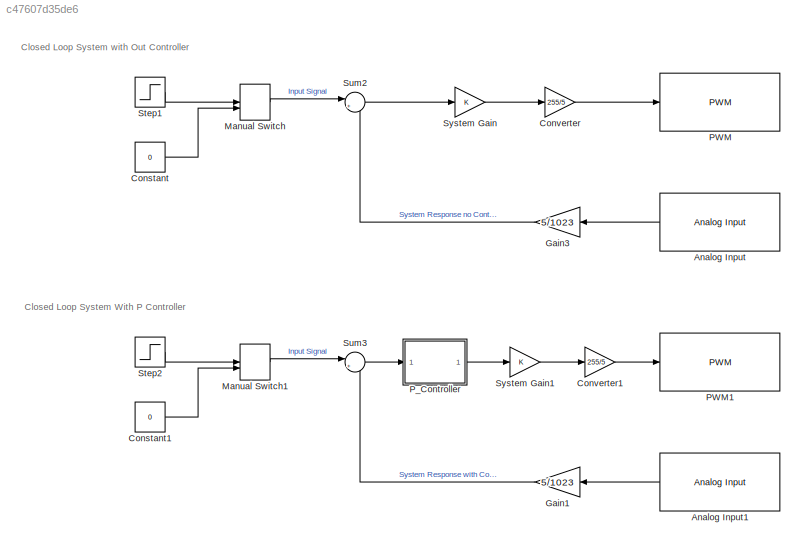
MODEL slx_c47607d35de6
KIND model
CONFIG AbsTol = auto
CONFIG EnableMultiTasking = on
CONFIG FixedStep = 0.001
CONFIG MaxStep = auto
CONFIG MinStep = auto
CONFIG RelTol = 1e-3
CONFIG SampleTimeConstraint = Unconstrained
CONFIG SolverName = FixedStepDiscrete
CONFIG StartTime = 0.0
CONFIG StopTime = 10
BLOCK [Reference] Analog Input  REF=arduinolib/Analog Input
  Commented = on
  NameLocation = top
  SourceBlock = arduinolib/Analog Input
  SourceType = Arduino Analog Input
BLOCK [Reference] Analog Input1  REF=arduinolib/Analog Input
  NameLocation = top
  SourceBlock = arduinolib/Analog Input
  SourceType = Arduino Analog Input
BLOCK [Constant] Constant
  Commented = on
  Value = 0
BLOCK [Constant] Constant1
  Value = 0
BLOCK [Gain] Converter
  Commented = on
  Gain = 255/5
BLOCK [Gain] Converter1
  Gain = 255/5
BLOCK [Gain] Gain1
  Gain = 5/1023
  NameLocation = top
BLOCK [Gain] Gain3
  Commented = on
  Gain = 5/1023
  NameLocation = top
BLOCK [ManualSwitch] Manual Switch
  Commented = on
BLOCK [ManualSwitch] Manual Switch1
BLOCK [Reference] PWM  REF=arduinolib/PWM
  Commented = on
  SourceBlock = arduinolib/PWM
  SourceType = Arduino PWM
BLOCK [Reference] PWM1  REF=arduinolib/PWM
  SourceBlock = arduinolib/PWM
  SourceType = Arduino PWM
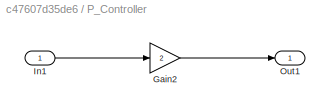
BLOCK [SubSystem] P_Controller
BLOCK [Gain] P_Controller/Gain2
  Gain = 2
BLOCK [Inport] P_Controller/In1
BLOCK [Outport] P_Controller/Out1
BLOCK [Step] Step1
  Commented = on
  SampleTime = 0
BLOCK [Step] Step2
  SampleTime = 0
BLOCK [Sum] Sum2
  Commented = on
  Inputs = |+-
BLOCK [Sum] Sum3
  Inputs = |+-
BLOCK [Gain] System Gain
  Commented = on
BLOCK [Gain] System Gain1
ANNOTATION (root): Closed Loop System With P Controller
ANNOTATION (root): Closed Loop System with Out Controller
LINE Analog Input1:1 -> Gain1:1
LINE Analog Input:1 -> Gain3:1
LINE Constant1:1 -> Manual Switch1:2
LINE Constant:1 -> Manual Switch:2
LINE Converter1:1 -> PWM1:1
LINE Converter:1 -> PWM:1
LINE Gain1:1 -> Sum3:2
LINE Gain3:1 -> Sum2:2
LINE Manual Switch1:1 -> Sum3:1
LINE Manual Switch:1 -> Sum2:1
LINE P_Controller/Gain2:1 -> P_Controller/Out1:1
LINE P_Controller/In1:1 -> P_Controller/Gain2:1
LINE P_Controller:1 -> System Gain1:1
LINE Step1:1 -> Manual Switch:1
LINE Step2:1 -> Manual Switch1:1
LINE Sum2:1 -> System Gain:1
LINE Sum3:1 -> P_Controller:1
LINE System Gain1:1 -> Converter1:1
LINE System Gain:1 -> Converter:1
